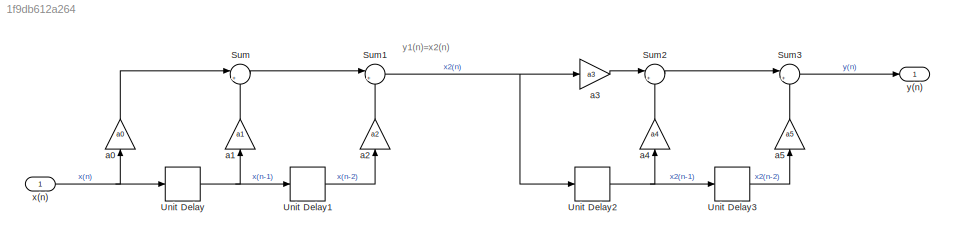
MODEL slx_1f9db612a264
KIND model
CONFIG AbsTol = auto
CONFIG EnableMultiTasking = off
CONFIG FixedStep = 0.2
CONFIG MaxStep = auto
CONFIG MinStep = auto
CONFIG RelTol = 1e-3
CONFIG SampleTimeConstraint = Unconstrained
CONFIG SolverName = FixedStepAuto
CONFIG StartTime = 0.0
CONFIG StopTime = 10.0
BLOCK [Sum] Sum
  Inputs = |++
  Ports = [2, 1]
BLOCK [Sum] Sum1
  Inputs = |++
  Ports = [2, 1]
BLOCK [Sum] Sum2
  Inputs = |++
  Ports = [2, 1]
BLOCK [Sum] Sum3
  Inputs = |++
  Ports = [2, 1]
BLOCK [Delay] Unit Delay
  DelayLength = 1
  InitialCondition = 0
  InputPortMap = u0
  Ports = [1, 1]
BLOCK [Delay] Unit Delay1
  DelayLength = 1
  InitialCondition = 0
  InputPortMap = u0
  Ports = [1, 1]
BLOCK [Delay] Unit Delay2
  DelayLength = 1
  InitialCondition = 0
  InputPortMap = u0
  Ports = [1, 1]
BLOCK [Delay] Unit Delay3
  DelayLength = 1
  InitialCondition = 0
  InputPortMap = u0
  Ports = [1, 1]
BLOCK [Gain] a0
  Gain = a0
  NameLocation = right
BLOCK [Gain] a1
  Gain = a1
  NameLocation = right
BLOCK [Gain] a2
  Gain = a2
  NameLocation = right
BLOCK [Gain] a3
  Gain = a3
BLOCK [Gain] a4
  Gain = a4
  NameLocation = right
BLOCK [Gain] a5
  Gain = a5
  NameLocation = right
BLOCK [Inport] x(n)
  OutDataTypeStr = double
  PortDimensions = 1
  SampleTime = [0.20000000000000001,0]
  SamplingMode = Sample based
  SignalType = real
BLOCK [Outport] y(n)
  OutDataTypeStr = double
  PortDimensions = 1
  SampleTime = [0.20000000000000001,0]
  SamplingMode = Sample based
  SignalType = real
ANNOTATION (root): y1(n)=x2(n)
NET Sum1:1 -> Unit Delay2:1, a3:1
LINE Sum2:1 -> Sum3:1
LINE Sum3:1 -> y(n):1
LINE Sum:1 -> Sum1:1
LINE Unit Delay1:1 -> a2:1
NET Unit Delay2:1 -> Unit Delay3:1, a4:1
LINE Unit Delay3:1 -> a5:1
NET Unit Delay:1 -> Unit Delay1:1, a1:1
LINE a0:1 -> Sum:1
LINE a1:1 -> Sum:2
LINE a2:1 -> Sum1:2
LINE a3:1 -> Sum2:1
LINE a4:1 -> Sum2:2
LINE a5:1 -> Sum3:2
NET x(n):1 -> Unit Delay:1, a0:1
note: NET lines group one-source signal fan-out (src -> all destinations, sorted); 1:1 wires keep LINE
